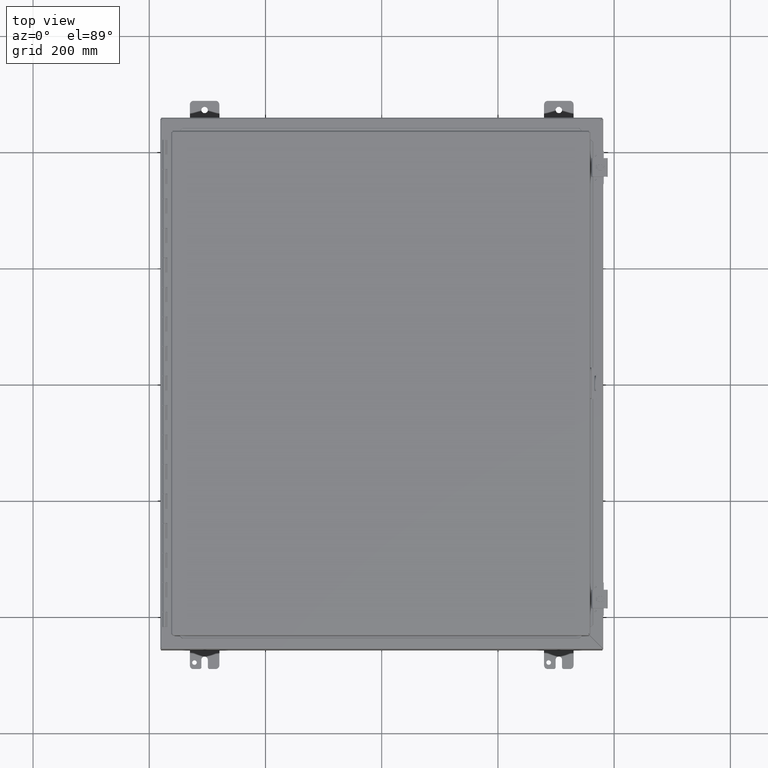
[diagram: clean part render]
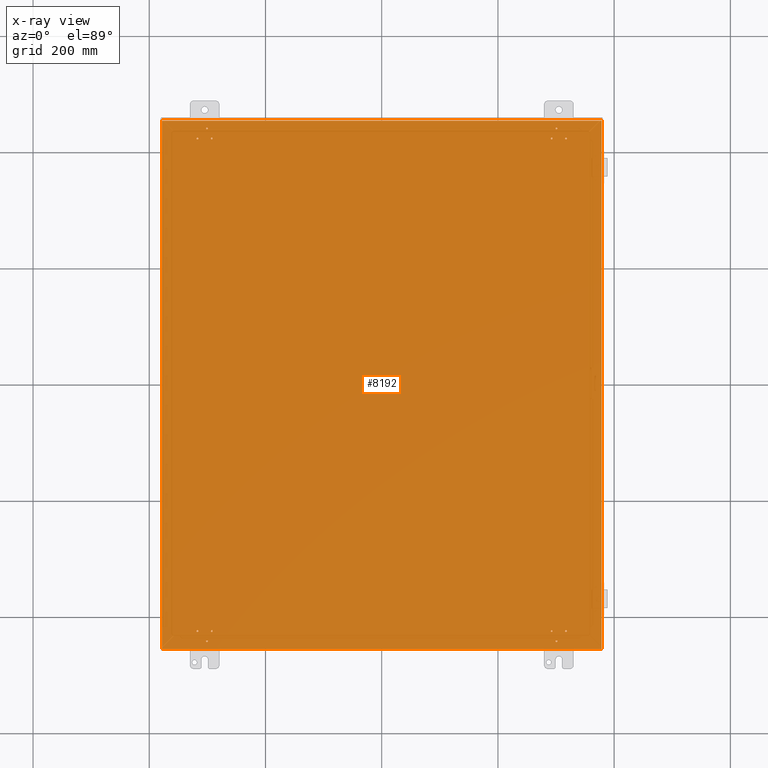
[diagram: x-ray — body ghosted, one internal face saturated and labeled with its STEP entity id]
A machine part, top view, then the same camera in x-ray: the body is ghosted and one INTERNAL B-rep face — a face not visible from any outside direction — is saturated and labeled: STEP entity #8192.
In plain terms, the highlighted planar face has unit normal (0, 0, 1).
Its self-contained STEP definition (entity closure, byte-faithful):
#1709=CARTESIAN_POINT('',(12.424375299999991,-16.68999899186646,0.074));
#1710=VERTEX_POINT('',#1709);
#1711=CARTESIAN_POINT('',(12.484375299999991,-16.68999899186646,0.074));
#1712=DIRECTION('',(0.0,0.0,-1.0));
#1713=DIRECTION('',(1.0,0.0,0.0));
#1714=AXIS2_PLACEMENT_3D('',#1711,#1712,#1713);
#1715=CIRCLE('',#1714,0.06);
#1716=EDGE_CURVE('',#1710,#1710,#1715,.T.);
#1783=CARTESIAN_POINT('',(11.455625299999992,-16.68999899186646,0.074));
#1784=VERTEX_POINT('',#1783);
#1785=CARTESIAN_POINT('',(11.515625299999993,-16.68999899186646,0.074));
#1786=DIRECTION('',(0.0,0.0,-1.0));
#1787=DIRECTION('',(1.0,0.0,0.0));
#1788=AXIS2_PLACEMENT_3D('',#1785,#1786,#1787);
#1789=CIRCLE('',#1788,0.06);
#1790=EDGE_CURVE('',#1784,#1784,#1789,.T.);
#1857=CARTESIAN_POINT('',(11.781250299997264,-17.375498991872266,0.074));
#1858=VERTEX_POINT('',#1857);
#1859=CARTESIAN_POINT('',(11.841250299997265,-17.375498991872266,0.074));
#1860=DIRECTION('',(0.0,0.0,-1.0));
#1861=DIRECTION('',(1.0,0.0,0.0));
#1862=AXIS2_PLACEMENT_3D('',#1859,#1860,#1861);
#1863=CIRCLE('',#1862,0.06);
#1864=EDGE_CURVE('',#1858,#1858,#1863,.T.);
#1931=CARTESIAN_POINT('',(-11.575625299999977,-16.689998991866464,0.074));
#1932=VERTEX_POINT('',#1931);
#1933=CARTESIAN_POINT('',(-11.515625299999979,-16.689998991866464,0.074));
#1934=DIRECTION('',(0.0,0.0,-1.0));
#1935=DIRECTION('',(1.0,0.0,0.0));
#1936=AXIS2_PLACEMENT_3D('',#1933,#1934,#1935);
#1937=CIRCLE('',#1936,0.06);
#1938=EDGE_CURVE('',#1932,#1932,#1937,.T.);
#2005=CARTESIAN_POINT('',(-11.901250299997249,-17.37549899187227,0.074));
#2006=VERTEX_POINT('',#2005);
#2007=CARTESIAN_POINT('',(-11.841250299997249,-17.37549899187227,0.074));
#2008=DIRECTION('',(0.0,0.0,-1.0));
#2009=DIRECTION('',(1.0,0.0,0.0));
#2010=AXIS2_PLACEMENT_3D('',#2007,#2008,#2009);
#2011=CIRCLE('',#2010,0.06);
#2012=EDGE_CURVE('',#2006,#2006,#2011,.T.);
#2079=CARTESIAN_POINT('',(-12.544375299999976,-16.689998991866464,0.074));
#2080=VERTEX_POINT('',#2079);
#2081=CARTESIAN_POINT('',(-12.484375299999975,-16.689998991866464,0.074));
#2082=DIRECTION('',(0.0,0.0,-1.0));
#2083=DIRECTION('',(1.0,0.0,0.0));
#2084=AXIS2_PLACEMENT_3D('',#2081,#2082,#2083);
#2085=CIRCLE('',#2084,0.06);
#2086=EDGE_CURVE('',#2080,#2080,#2085,.T.);
#2153=CARTESIAN_POINT('',(-11.901250299997249,17.375498991872277,0.074));
#2154=VERTEX_POINT('',#2153);
#2155=CARTESIAN_POINT('',(-11.841250299997249,17.375498991872277,0.074));
#2156=DIRECTION('',(0.0,0.0,-1.0));
#2157=DIRECTION('',(1.0,0.0,0.0));
#2158=AXIS2_PLACEMENT_3D('',#2155,#2156,#2157);
#2159=CIRCLE('',#2158,0.06);
#2160=EDGE_CURVE('',#2154,#2154,#2159,.T.);
#2227=CARTESIAN_POINT('',(-12.544375299999976,16.689998991866471,0.074));
#2228=VERTEX_POINT('',#2227);
#2229=CARTESIAN_POINT('',(-12.484375299999975,16.689998991866471,0.074));
#2230=DIRECTION('',(0.0,0.0,-1.0));
#2231=DIRECTION('',(1.0,0.0,0.0));
#2232=AXIS2_PLACEMENT_3D('',#2229,#2230,#2231);
#2233=CIRCLE('',#2232,0.06);
#2234=EDGE_CURVE('',#2228,#2228,#2233,.T.);
#2301=CARTESIAN_POINT('',(-11.575625299999977,16.689998991866471,0.074));
#2302=VERTEX_POINT('',#2301);
#2303=CARTESIAN_POINT('',(-11.515625299999979,16.689998991866471,0.074));
#2304=DIRECTION('',(0.0,0.0,-1.0));
#2305=DIRECTION('',(1.0,0.0,0.0));
#2306=AXIS2_PLACEMENT_3D('',#2303,#2304,#2305);
#2307=CIRCLE('',#2306,0.06);
#2308=EDGE_CURVE('',#2302,#2302,#2307,.T.);
#2375=CARTESIAN_POINT('',(11.455625299999989,16.689998991866464,0.074));
#2376=VERTEX_POINT('',#2375);
#2377=CARTESIAN_POINT('',(11.515625299999989,16.689998991866464,0.074));
#2378=DIRECTION('',(0.0,0.0,-1.0));
#2379=DIRECTION('',(1.0,0.0,0.0));
#2380=AXIS2_PLACEMENT_3D('',#2377,#2378,#2379);
#2381=CIRCLE('',#2380,0.06);
#2382=EDGE_CURVE('',#2376,#2376,#2381,.T.);
#2449=CARTESIAN_POINT('',(11.781250299997263,17.37549899187227,0.074));
#2450=VERTEX_POINT('',#2449);
#2451=CARTESIAN_POINT('',(11.841250299997261,17.37549899187227,0.074));
#2452=DIRECTION('',(0.0,0.0,-1.0));
#2453=DIRECTION('',(1.0,0.0,0.0));
#2454=AXIS2_PLACEMENT_3D('',#2451,#2452,#2453);
#2455=CIRCLE('',#2454,0.06);
#2456=EDGE_CURVE('',#2450,#2450,#2455,.T.);
#2523=CARTESIAN_POINT('',(12.424375299999989,16.689998991866464,0.074));
#2524=VERTEX_POINT('',#2523);
#2525=CARTESIAN_POINT('',(12.484375299999988,16.689998991866464,0.074));
#2526=DIRECTION('',(0.0,0.0,-1.0));
#2527=DIRECTION('',(1.0,0.0,0.0));
#2528=AXIS2_PLACEMENT_3D('',#2525,#2526,#2527);
#2529=CIRCLE('',#2528,0.06);
#2530=EDGE_CURVE('',#2524,#2524,#2529,.T.);
#6756=CARTESIAN_POINT('',(14.894749999999998,17.882766839324354,0.074));
#6757=VERTEX_POINT('',#6756);
#6767=CARTESIAN_POINT('',(14.894749999999998,-17.882766839324365,0.074));
#6768=VERTEX_POINT('',#6767);
#6769=CARTESIAN_POINT('',(14.894749999999998,-17.882766839324361,0.074));
#6770=DIRECTION('',(0.0,1.0,0.0));
#6771=VECTOR('',#6770,35.765533678648715);
#6772=LINE('',#6769,#6771);
#6773=EDGE_CURVE('',#6768,#6757,#6772,.T.);
#7085=CARTESIAN_POINT('',(-14.894749999999998,-17.882766839324361,0.073999999999997));
#7086=VERTEX_POINT('',#7085);
#7096=CARTESIAN_POINT('',(-14.894750000000004,17.882766839324368,0.074));
#7097=VERTEX_POINT('',#7096);
#7098=CARTESIAN_POINT('',(-14.894750000000002,17.882766839324368,0.074));
#7099=DIRECTION('',(0.0,-1.0,0.0));
#7100=VECTOR('',#7099,35.76553367864873);
#7101=LINE('',#7098,#7100);
#7102=EDGE_CURVE('',#7097,#7086,#7101,.T.);
#7366=CARTESIAN_POINT('',(14.882766839324363,-17.894749999999998,0.074));
#7367=VERTEX_POINT('',#7366);
#7377=CARTESIAN_POINT('',(-14.88276683932436,-17.894749999999998,0.074));
#7378=VERTEX_POINT('',#7377);
#7379=CARTESIAN_POINT('',(-14.88276683932436,-17.894749999999998,0.074));
#7380=DIRECTION('',(1.0,0.0,0.0));
#7381=VECTOR('',#7380,29.765533678648723);
#7382=LINE('',#7379,#7381);
#7383=EDGE_CURVE('',#7378,#7367,#7382,.T.);
#7743=CARTESIAN_POINT('',(-14.88276683932437,17.894749999999998,0.074));
#7744=VERTEX_POINT('',#7743);
#7754=CARTESIAN_POINT('',(14.882766839324354,17.894749999999998,0.074));
#7755=VERTEX_POINT('',#7754);
#7756=CARTESIAN_POINT('',(14.882766839324354,17.894749999999998,0.074));
#7757=DIRECTION('',(-1.0,0.0,0.0));
#7758=VECTOR('',#7757,29.765533678648726);
#7759=LINE('',#7756,#7758);
#7760=EDGE_CURVE('',#7755,#7744,#7759,.T.);
#8029=CARTESIAN_POINT('',(-14.937891921115426,17.937891921115426,0.074));
#8030=DIRECTION('',(0.0,0.0,-1.0));
#8031=DIRECTION('',(1.0,0.0,0.0));
#8032=AXIS2_PLACEMENT_3D('',#8029,#8030,#8031);
#8033=CIRCLE('',#8032,0.07);
#8034=EDGE_CURVE('',#7744,#7097,#8033,.T.);
#8116=CARTESIAN_POINT('',(14.937891921115414,17.937891921115416,0.074));
#8117=DIRECTION('',(0.0,0.0,-1.0));
#8118=DIRECTION('',(1.0,0.0,0.0));
#8119=AXIS2_PLACEMENT_3D('',#8116,#8117,#8118);
#8120=CIRCLE('',#8119,0.07);
#8121=EDGE_CURVE('',#6757,#7755,#8120,.T.);
#8129=CARTESIAN_POINT('',(-1.398706E-015,-1.387147E-016,0.074));
#8130=DIRECTION('',(0.0,0.0,1.0));
#8131=DIRECTION('',(1.0,0.0,0.0));
#8132=AXIS2_PLACEMENT_3D('',#8129,#8130,#8131);
#8133=PLANE('',#8132);
#8134=ORIENTED_EDGE('',*,*,#7760,.T.);
#8135=ORIENTED_EDGE('',*,*,#8034,.T.);
#8136=ORIENTED_EDGE('',*,*,#7102,.T.);
#8137=CARTESIAN_POINT('',(-14.937891921115417,-17.937891921115419,0.074));
#8138=DIRECTION('',(0.0,0.0,-1.0));
#8139=DIRECTION('',(1.0,0.0,0.0));
#8140=AXIS2_PLACEMENT_3D('',#8137,#8138,#8139);
#8141=CIRCLE('',#8140,0.07);
#8142=EDGE_CURVE('',#7086,#7378,#8141,.T.);
#8143=ORIENTED_EDGE('',*,*,#8142,.T.);
#8144=ORIENTED_EDGE('',*,*,#7383,.T.);
#8145=CARTESIAN_POINT('',(14.937891921115421,-17.937891921115419,0.074));
#8146=DIRECTION('',(0.0,0.0,-1.0));
#8147=DIRECTION('',(1.0,0.0,0.0));
#8148=AXIS2_PLACEMENT_3D('',#8145,#8146,#8147);
#8149=CIRCLE('',#8148,0.07);
#8150=EDGE_CURVE('',#7367,#6768,#8149,.T.);
#8151=ORIENTED_EDGE('',*,*,#8150,.T.);
#8152=ORIENTED_EDGE('',*,*,#6773,.T.);
#8153=ORIENTED_EDGE('',*,*,#8121,.T.);
#8154=EDGE_LOOP('',(#8134,#8135,#8136,#8143,#8144,#8151,#8152,#8153));
#8155=FACE_OUTER_BOUND('',#8154,.T.);
#8156=ORIENTED_EDGE('',*,*,#1716,.T.);
#8157=EDGE_LOOP('',(#8156));
#8158=FACE_BOUND('',#8157,.T.);
#8159=ORIENTED_EDGE('',*,*,#1790,.T.);
#8160=EDGE_LOOP('',(#8159));
#8161=FACE_BOUND('',#8160,.T.);
#8162=ORIENTED_EDGE('',*,*,#1864,.T.);
#8163=EDGE_LOOP('',(#8162));
#8164=FACE_BOUND('',#8163,.T.);
#8165=ORIENTED_EDGE('',*,*,#1938,.T.);
#8166=EDGE_LOOP('',(#8165));
#8167=FACE_BOUND('',#8166,.T.);
#8168=ORIENTED_EDGE('',*,*,#2012,.T.);
#8169=EDGE_LOOP('',(#8168));
#8170=FACE_BOUND('',#8169,.T.);
#8171=ORIENTED_EDGE('',*,*,#2086,.T.);
#8172=EDGE_LOOP('',(#8171));
#8173=FACE_BOUND('',#8172,.T.);
#8174=ORIENTED_EDGE('',*,*,#2160,.T.);
#8175=EDGE_LOOP('',(#8174));
#8176=FACE_BOUND('',#8175,.T.);
#8177=ORIENTED_EDGE('',*,*,#2234,.T.);
#8178=EDGE_LOOP('',(#8177));
#8179=FACE_BOUND('',#8178,.T.);
#8180=ORIENTED_EDGE('',*,*,#2308,.T.);
#8181=EDGE_LOOP('',(#8180));
#8182=FACE_BOUND('',#8181,.T.);
#8183=ORIENTED_EDGE('',*,*,#2382,.T.);
#8184=EDGE_LOOP('',(#8183));
#8185=FACE_BOUND('',#8184,.T.);
#8186=ORIENTED_EDGE('',*,*,#2456,.T.);
#8187=EDGE_LOOP('',(#8186));
#8188=FACE_BOUND('',#8187,.T.);
#8189=ORIENTED_EDGE('',*,*,#2530,.T.);
#8190=EDGE_LOOP('',(#8189));
#8191=FACE_BOUND('',#8190,.T.);
#8192=ADVANCED_FACE('',(#8155,#8158,#8161,#8164,#8167,#8170,#8173,#8176,#8179,#8182,#8185,#8188,#8191),#8133,.T.);